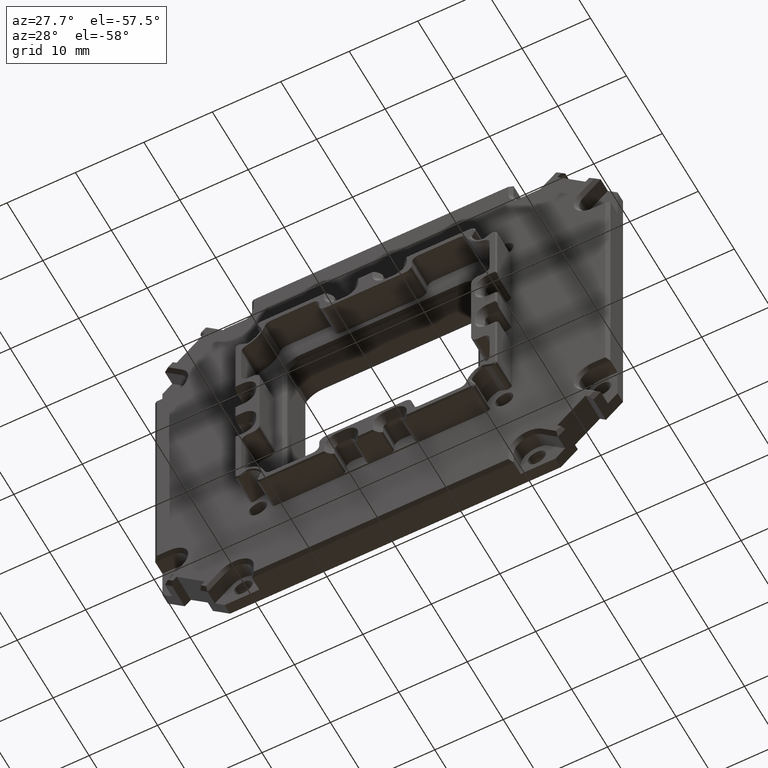
[diagram: clean part render]
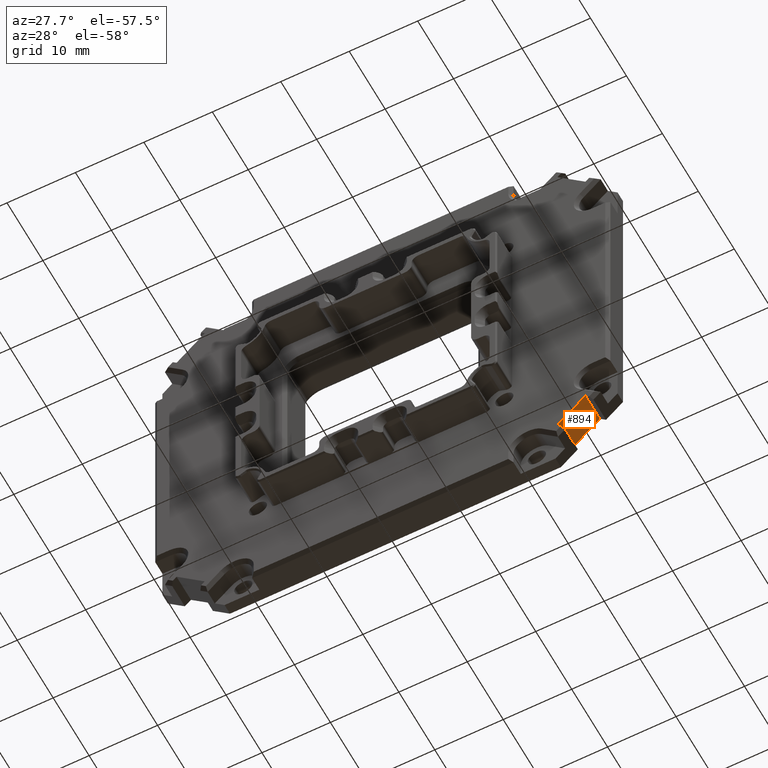
[diagram: same view with one face highlighted and labeled with its STEP entity id]
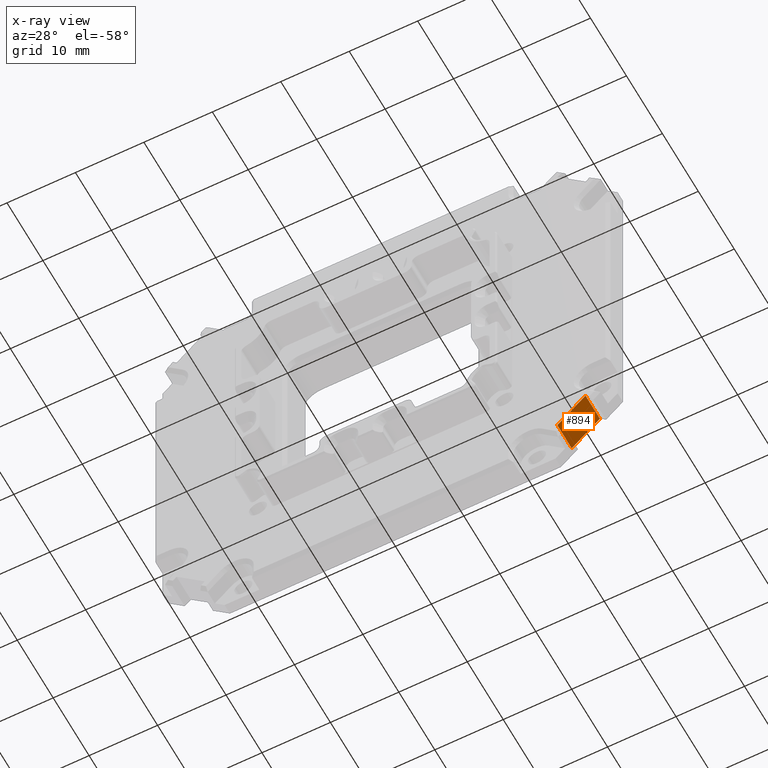
[diagram: x-ray of the same camera — body ghosted, the highlighted face saturated]
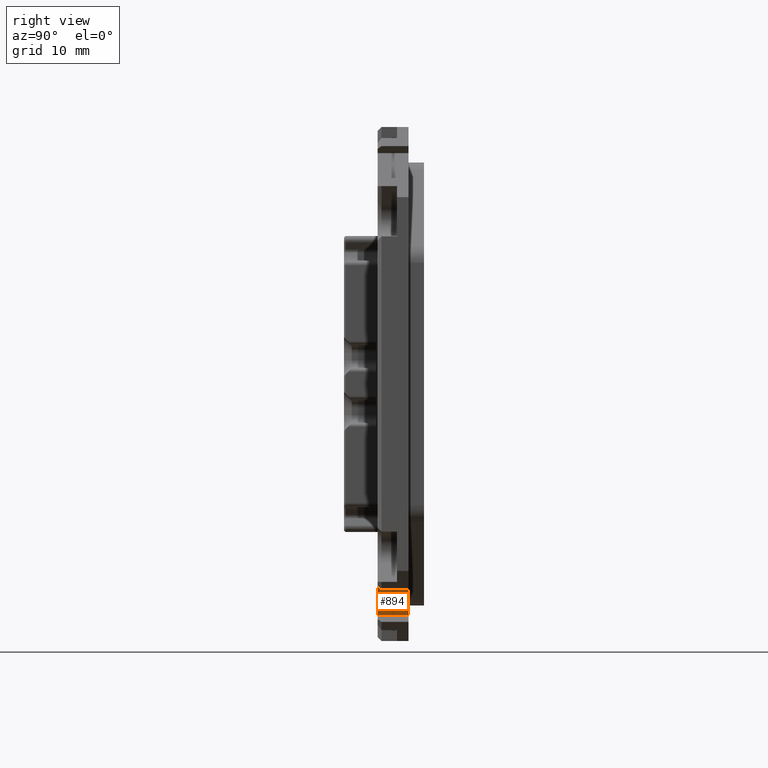
[diagram: same view with one face highlighted and labeled with its STEP entity id]
A machine part, auxiliary view. The second image highlights one B-rep face of the part: STEP entity #894.
The next image is the same camera in x-ray: the body ghosted, the highlighted face saturated — about 0% of this face is hidden behind the body in this view.
A second angle (right view) of the same face is appended — the face is thin or edge-on in the first view.
In plain terms, the highlighted planar face has unit normal (0.7071, 0, -0.7071).
Its self-contained STEP definition (entity closure, byte-faithful):
#894=ADVANCED_FACE('',(#1347),#4554,.T.);
#1347=FACE_OUTER_BOUND('',#1833,.F.);
#1833=EDGE_LOOP('',(#4147,#4148,#4149,#4150));
#4147=ORIENTED_EDGE('',*,*,#6507,.F.);
#4148=ORIENTED_EDGE('',*,*,#7621,.F.);
#4149=ORIENTED_EDGE('',*,*,#6508,.F.);
#4150=ORIENTED_EDGE('',*,*,#7622,.T.);
#4554=PLANE('',#10903);
#6507=EDGE_CURVE('',#10035,#10034,#7715,.T.);
#6508=EDGE_CURVE('',#10033,#10032,#7716,.T.);
#7621=EDGE_CURVE('',#10032,#10035,#8469,.T.);
#7622=EDGE_CURVE('',#10033,#10034,#8470,.T.);
#7715=LINE('',#14267,#8563);
#7716=LINE('',#14268,#8564);
#8469=LINE('',#15637,#9317);
#8470=LINE('',#15638,#9318);
#8563=VECTOR('',#11055,5.82049299999999);
#8564=VECTOR('',#11056,5.820493);
#9317=VECTOR('',#12465,4.);
#9318=VECTOR('',#12466,4.);
#10032=VERTEX_POINT('',#14092);
#10033=VERTEX_POINT('',#14093);
#10034=VERTEX_POINT('',#14094);
#10035=VERTEX_POINT('',#14095);
#10903=AXIS2_PLACEMENT_3D('',#16070,#13311,#13312);
#11055=DIRECTION('',(0.707106781186548,0.,0.707106781186547));
#11056=DIRECTION('',(-0.707106781186549,0.,-0.707106781186546));
#12465=DIRECTION('',(0.,1.,0.));
#12466=DIRECTION('',(0.,1.,0.));
#13311=DIRECTION('',(0.707106781186546,0.,-0.707106781186549));
#13312=DIRECTION('',(-0.707106781186549,0.,-0.707106781186546));
#14092=CARTESIAN_POINT('',(25.7529183747471,-3.99999995886814,-29.8734005584018));
#14093=CARTESIAN_POINT('',(29.8686284448959,-3.99999995886814,-25.7576904882529));
#14094=CARTESIAN_POINT('',(29.8686284448959,4.11318596379519E-08,-25.7576904882529));
#14095=CARTESIAN_POINT('',(25.7529183747471,4.11318598660254E-08,-29.8734005584018));
#14267=CARTESIAN_POINT('',(25.7529183747471,0.,-29.8734005584018));
#14268=CARTESIAN_POINT('',(29.8686284448959,-4.,-25.757690488253));
#15637=CARTESIAN_POINT('',(25.7529183747471,-3.99999987660442,-29.8734005584018));
#15638=CARTESIAN_POINT('',(29.8686284448959,-3.99999987660442,-25.7576904882529));
#16070=CARTESIAN_POINT('',(29.9097855455974,0.0582050533955782,-25.7165333875514));